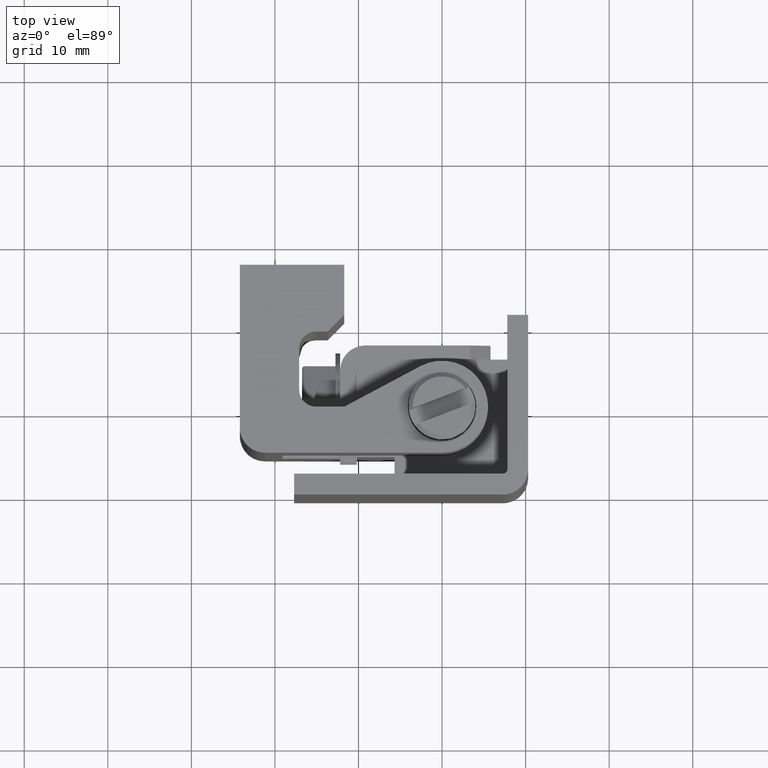
[diagram: clean part render]
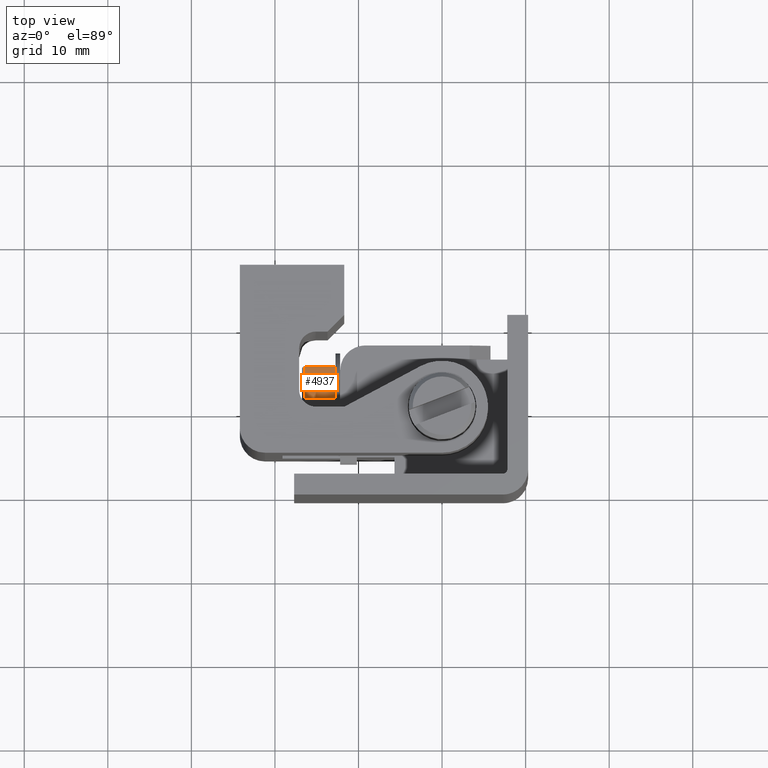
[diagram: same view with one face highlighted and labeled with its STEP entity id]
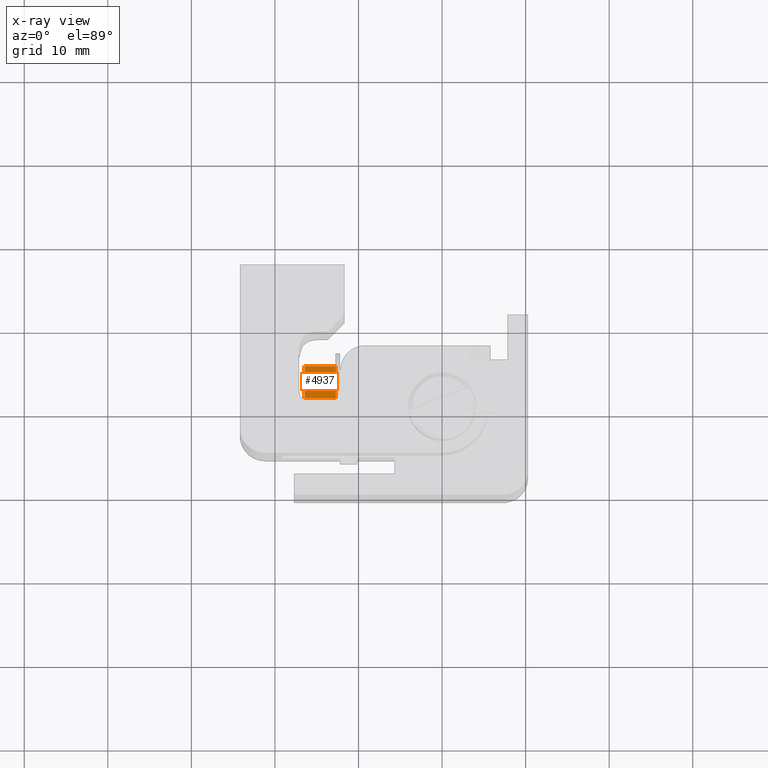
[diagram: x-ray of the same camera — body ghosted, the highlighted face saturated]
A machine part, top view. The second image highlights one B-rep face of the part: STEP entity #4937.
The next image is the same camera in x-ray: the body ghosted, the highlighted face saturated — about 0% of this face is hidden behind the body in this view.
In plain terms, the highlighted face is a freeform B-spline surface patch.
Its self-contained STEP definition (entity closure, byte-faithful):
#3232=CARTESIAN_POINT('',(-6.650000246567700,20.840822139533149,89.717404261352797));
#3233=VERTEX_POINT('',#3232);
#3380=CARTESIAN_POINT('',(-6.650000246567700,16.999999291319948,91.934904366678495));
#3381=VERTEX_POINT('',#3380);
#3397=CARTESIAN_POINT('',(-6.650000246567700,20.840822139533149,89.717404261352797));
#3398=CARTESIAN_POINT('',(-6.650000246567700,16.999999291319948,91.934904366678495));
#3399=QUASI_UNIFORM_CURVE('',1,(#3397,#3398),.UNSPECIFIED.,.F.,.U.);
#3400=EDGE_CURVE('',#3233,#3381,#3399,.T.);
#4897=CARTESIAN_POINT('',(-2.950000056577860,20.840822139533149,89.717404261352797));
#4898=VERTEX_POINT('',#4897);
#4899=CARTESIAN_POINT('',(-6.650000246567700,20.840822139533149,89.717404261352797));
#4900=CARTESIAN_POINT('',(-2.950000056577860,20.840822139533149,89.717404261352797));
#4901=QUASI_UNIFORM_CURVE('',1,(#4899,#4900),.UNSPECIFIED.,.F.,.U.);
#4902=EDGE_CURVE('',#3233,#4898,#4901,.T.);
#4916=CARTESIAN_POINT('',(-6.834815109954555,16.808150049777161,92.045668577927032));
#4917=CARTESIAN_POINT('',(-6.834815109954555,21.032669904471771,89.606640902622090));
#4918=CARTESIAN_POINT('',(-2.765184961626946,16.808150049777161,92.045668577927032));
#4919=CARTESIAN_POINT('',(-2.765184961626946,21.032669904471771,89.606640902622075));
#4920=B_SPLINE_SURFACE_WITH_KNOTS('',1,1,((#4916,#4918),(#4917,#4919)),.UNSPECIFIED.,.F.,.F.,.U.,(2,2),(2,2),(0.0,4.878055350609758),(0.0,4.069630148327608),.UNSPECIFIED.);
#4921=ORIENTED_EDGE('',*,*,#4902,.F.);
#4922=ORIENTED_EDGE('',*,*,#3400,.T.);
#4923=CARTESIAN_POINT('',(-2.950000056577860,16.999999291319948,91.934904366678495));
#4924=VERTEX_POINT('',#4923);
#4925=CARTESIAN_POINT('',(-6.650000246567700,16.999999291319948,91.934904366678495));
#4926=CARTESIAN_POINT('',(-2.950000056577860,16.999999291319948,91.934904366678495));
#4927=QUASI_UNIFORM_CURVE('',1,(#4925,#4926),.UNSPECIFIED.,.F.,.U.);
#4928=EDGE_CURVE('',#3381,#4924,#4927,.T.);
#4929=ORIENTED_EDGE('',*,*,#4928,.T.);
#4930=CARTESIAN_POINT('',(-2.950000056577860,16.999999291319948,91.934904366678495));
#4931=CARTESIAN_POINT('',(-2.950000056577860,20.840822139533149,89.717404261352797));
#4932=QUASI_UNIFORM_CURVE('',1,(#4930,#4931),.UNSPECIFIED.,.F.,.U.);
#4933=EDGE_CURVE('',#4924,#4898,#4932,.T.);
#4934=ORIENTED_EDGE('',*,*,#4933,.T.);
#4935=EDGE_LOOP('',(#4921,#4922,#4929,#4934));
#4936=FACE_OUTER_BOUND('',#4935,.T.);
#4937=ADVANCED_FACE('',(#4936),#4920,.F.);